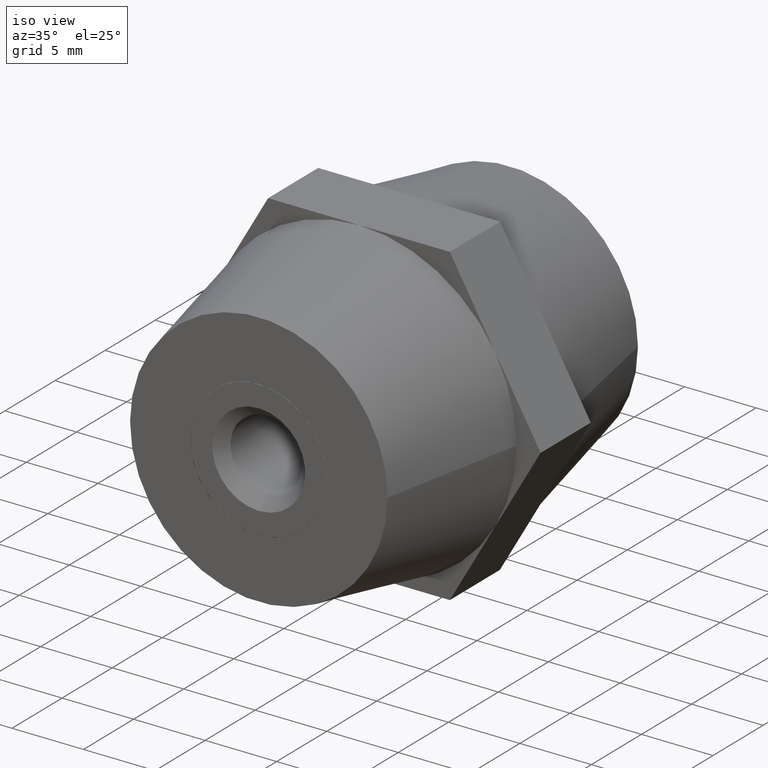
[diagram: clean part render]
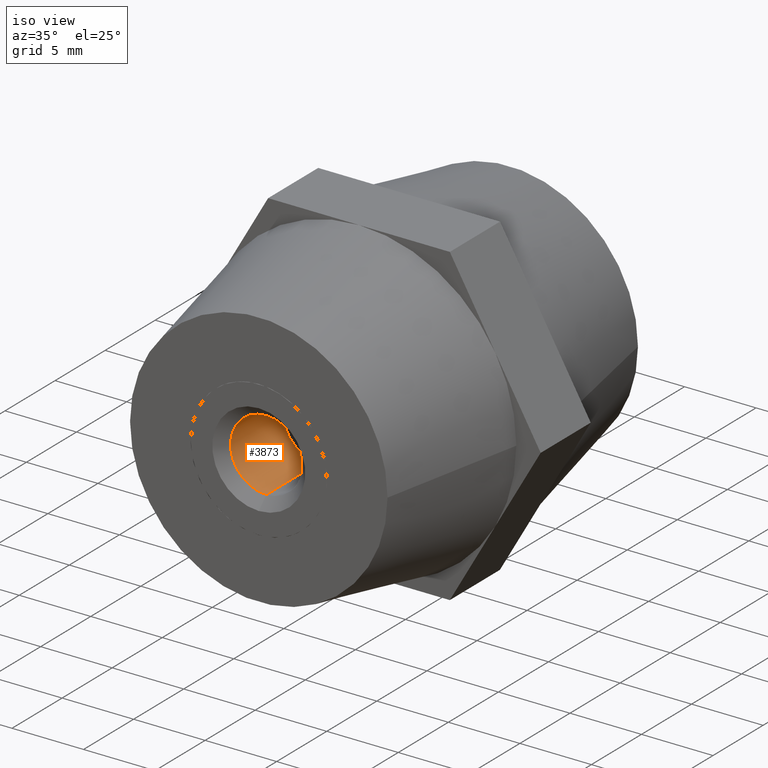
[diagram: same view with one face highlighted and labeled with its STEP entity id]
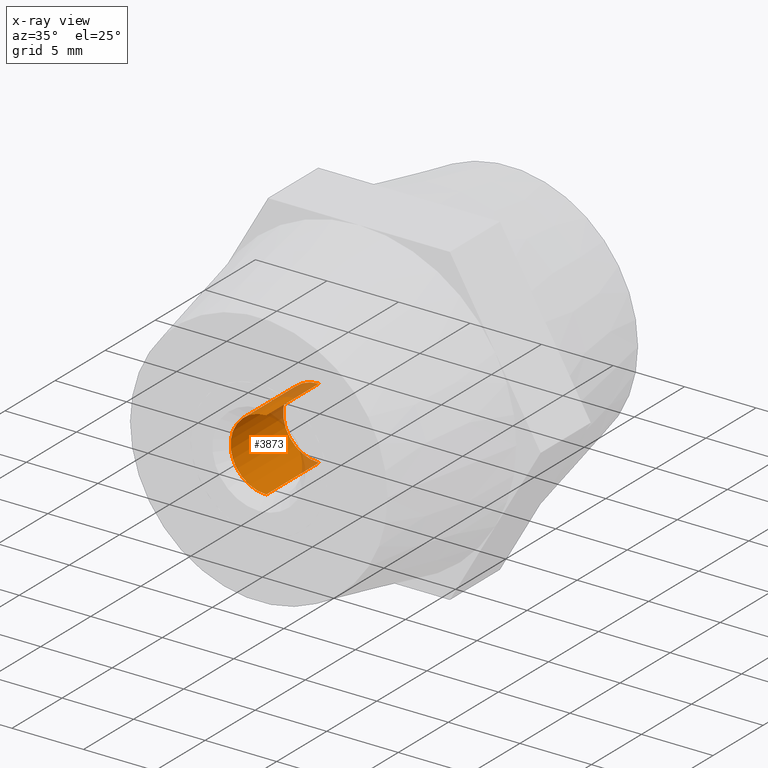
[diagram: x-ray of the same camera — body ghosted, the highlighted face saturated]
A machine part, iso view. The second image highlights one B-rep face of the part: STEP entity #3873.
The next image is the same camera in x-ray: the body ghosted, the highlighted face saturated — about 12% of this face is hidden behind the body in this view.
In plain terms, the highlighted cylindrical surface (partial cylindrical patch) has radius 2.5 mm, axis along (0, -1, 0).
Its self-contained STEP definition (entity closure, byte-faithful):
#14 = CARTESIAN_POINT ( 'NONE',  ( 0.0000000000000000000, 2.000000000000000000, 0.0000000000000000000 ) ) ;
#513 = ORIENTED_EDGE ( 'NONE', *, *, #2031, .T. ) ;
#703 = CARTESIAN_POINT ( 'NONE',  ( 3.061616997868383100E-016, 7.250000000000000000, -2.500000000000000000 ) ) ;
#808 = DIRECTION ( 'NONE',  ( 0.0000000000000000000, 0.0000000000000000000, 1.000000000000000000 ) ) ;
#843 = VERTEX_POINT ( 'NONE', #3828 ) ;
#933 = EDGE_CURVE ( 'NONE', #3533, #843, #3617, .T. ) ;
#1129 = AXIS2_PLACEMENT_3D ( 'NONE', #1174, #2403, #2707 ) ;
#1174 = CARTESIAN_POINT ( 'NONE',  ( 0.0000000000000000000, 8.000000000000000000, 0.0000000000000000000 ) ) ;
#1326 = EDGE_CURVE ( 'NONE', #1936, #3616, #1913, .T. ) ;
#1643 = ORIENTED_EDGE ( 'NONE', *, *, #2123, .F. ) ;
#1706 = VECTOR ( 'NONE', #2696, 1000.000000000000000 ) ;
#1821 = CARTESIAN_POINT ( 'NONE',  ( 3.061616997868383100E-016, 8.000000000000000000, -2.500000000000000000 ) ) ;
#1913 = CIRCLE ( 'NONE', #3788, 2.500000000000000000 ) ;
#1918 = CARTESIAN_POINT ( 'NONE',  ( 0.0000000000000000000, 8.000000000000000000, 2.500000000000000000 ) ) ;
#1936 = VERTEX_POINT ( 'NONE', #3674 ) ;
#2031 = EDGE_CURVE ( 'NONE', #3533, #1936, #2141, .T. ) ;
#2123 = EDGE_CURVE ( 'NONE', #843, #3616, #2136, .T. ) ;
#2126 = ORIENTED_EDGE ( 'NONE', *, *, #1326, .T. ) ;
#2136 = LINE ( 'NONE', #1821, #1706 ) ;
#2141 = LINE ( 'NONE', #1918, #3387 ) ;
#2343 = DIRECTION ( 'NONE',  ( 0.0000000000000000000, 1.000000000000000000, 0.0000000000000000000 ) ) ;
#2377 = CARTESIAN_POINT ( 'NONE',  ( 0.0000000000000000000, 2.000000000000000000, 2.500000000000000000 ) ) ;
#2403 = DIRECTION ( 'NONE',  ( 0.0000000000000000000, 1.000000000000000000, 0.0000000000000000000 ) ) ;
#2499 = AXIS2_PLACEMENT_3D ( 'NONE', #14, #2698, #3608 ) ;
#2613 = FACE_OUTER_BOUND ( 'NONE', #2860, .T. ) ;
#2629 = ORIENTED_EDGE ( 'NONE', *, *, #933, .F. ) ;
#2696 = DIRECTION ( 'NONE',  ( 0.0000000000000000000, 1.000000000000000000, 0.0000000000000000000 ) ) ;
#2698 = DIRECTION ( 'NONE',  ( 0.0000000000000000000, 1.000000000000000000, 0.0000000000000000000 ) ) ;
#2707 = DIRECTION ( 'NONE',  ( 0.0000000000000000000, 0.0000000000000000000, 1.000000000000000000 ) ) ;
#2822 = DIRECTION ( 'NONE',  ( 0.0000000000000000000, 1.000000000000000000, 0.0000000000000000000 ) ) ;
#2860 = EDGE_LOOP ( 'NONE', ( #1643, #2629, #513, #2126 ) ) ;
#3387 = VECTOR ( 'NONE', #2822, 1000.000000000000000 ) ;
#3533 = VERTEX_POINT ( 'NONE', #2377 ) ;
#3542 = CARTESIAN_POINT ( 'NONE',  ( 0.0000000000000000000, 7.250000000000000000, 0.0000000000000000000 ) ) ;
#3608 = DIRECTION ( 'NONE',  ( 0.0000000000000000000, 0.0000000000000000000, 1.000000000000000000 ) ) ;
#3616 = VERTEX_POINT ( 'NONE', #703 ) ;
#3617 = CIRCLE ( 'NONE', #2499, 2.500000000000000000 ) ;
#3674 = CARTESIAN_POINT ( 'NONE',  ( 0.0000000000000000000, 7.250000000000000000, 2.500000000000000000 ) ) ;
#3744 = CYLINDRICAL_SURFACE ( 'NONE', #1129, 2.500000000000000000 ) ;
#3788 = AXIS2_PLACEMENT_3D ( 'NONE', #3542, #2343, #808 ) ;
#3828 = CARTESIAN_POINT ( 'NONE',  ( 3.061616997868383100E-016, 2.000000000000000000, -2.500000000000000000 ) ) ;
#3873 = ADVANCED_FACE ( 'NONE', ( #2613 ), #3744, .F. ) ;